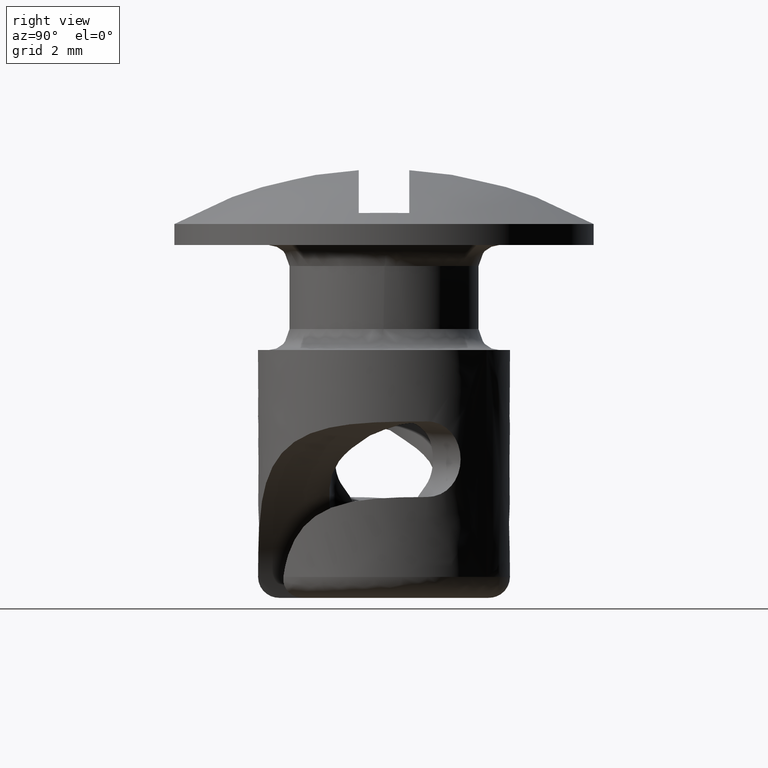
[diagram: clean part render]
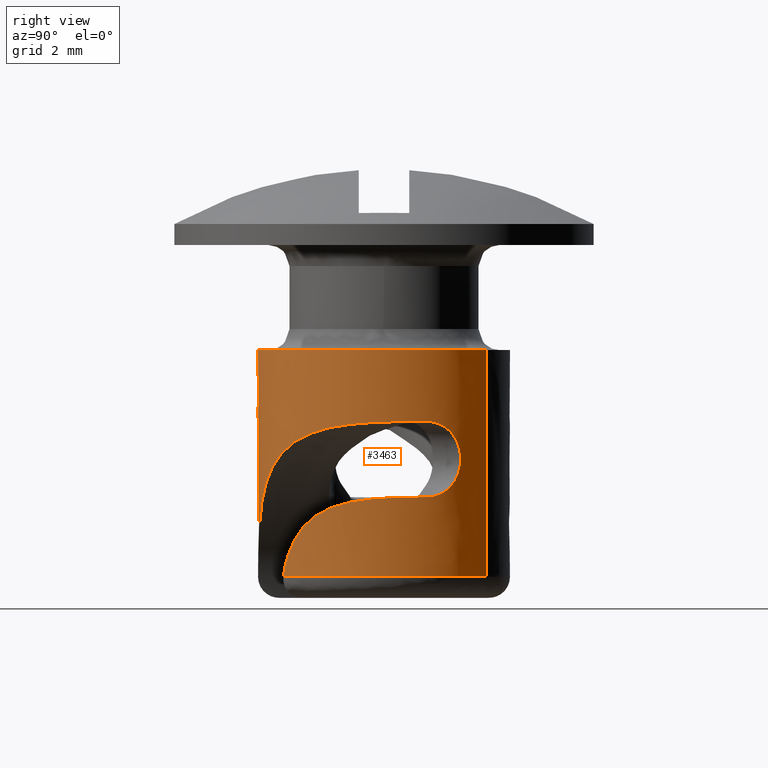
[diagram: same view with one face highlighted and labeled with its STEP entity id]
A machine part, right view. The second image highlights one B-rep face of the part: STEP entity #3463.
In plain terms, the highlighted face is a freeform B-spline surface patch.
Its self-contained STEP definition (entity closure, byte-faithful):
#1556=CARTESIAN_POINT('',(2.819077636768695,1.026061049781646,-6.0));
#1557=VERTEX_POINT('',#1556);
#2558=CARTESIAN_POINT('',(2.822162057853670,1.014812978952756,-4.200050929031289));
#2559=VERTEX_POINT('',#2558);
#2560=CARTESIAN_POINT('',(2.819077636768695,1.026061049781646,-6.0));
#2561=CARTESIAN_POINT('',(2.797463979171089,1.085464739461162,-6.000018086085476));
#2562=CARTESIAN_POINT('',(2.762605582109672,1.171679033032397,-5.990218091084494));
#2563=CARTESIAN_POINT('',(2.707279124423338,1.292800375605229,-5.954939885415632));
#2564=CARTESIAN_POINT('',(2.660950724522531,1.385715166991145,-5.913304676848258));
#2565=CARTESIAN_POINT('',(2.602183946454262,1.494033698544104,-5.843640163453288));
#2566=CARTESIAN_POINT('',(2.560195558849428,1.564437214475005,-5.778661587202548));
#2567=CARTESIAN_POINT('',(2.514876928577023,1.636150739021310,-5.695224062975206));
#2568=CARTESIAN_POINT('',(2.467354746193287,1.708269682873439,-5.592332834705904));
#2569=CARTESIAN_POINT('',(2.420011154006321,1.774448406189930,-5.440404758122634));
#2570=CARTESIAN_POINT('',(2.394169119860111,1.808458678951136,-5.297476428460682));
#2571=CARTESIAN_POINT('',(2.383381347915689,1.822150524114922,-5.190923944487786));
#2572=CARTESIAN_POINT('',(2.379180920556149,1.827233942294989,-5.064455100255301));
#2573=CARTESIAN_POINT('',(2.390285460132183,1.813614250129510,-4.915858042566186));
#2574=CARTESIAN_POINT('',(2.417618032197132,1.777447613480236,-4.777516314206652));
#2575=CARTESIAN_POINT('',(2.451925063704237,1.729719477352586,-4.657072484963682));
#2576=CARTESIAN_POINT('',(2.489532932553430,1.674993288976210,-4.557817584779168));
#2577=CARTESIAN_POINT('',(2.524836248180831,1.620521051361027,-4.485939954765863));
#2578=CARTESIAN_POINT('',(2.561941152248608,1.561445978562565,-4.419005154949642));
#2579=CARTESIAN_POINT('',(2.603781708120269,1.491036945080460,-4.354122994614465));
#2580=CARTESIAN_POINT('',(2.671631159883727,1.365369237595789,-4.273406146776569));
#2581=CARTESIAN_POINT('',(2.746700307929473,1.209133106600514,-4.213564865474518));
#2582=CARTESIAN_POINT('',(2.798266779280111,1.081292943283454,-4.199113421110448));
#2583=CARTESIAN_POINT('',(2.822162057853670,1.014812978952756,-4.200050929031289));
#2584=B_SPLINE_CURVE_WITH_KNOTS('',3,(#2560,#2561,#2562,#2563,#2564,#2565,#2566,#2567,#2568,#2569,#2570,#2571,#2572,#2573,#2574,#2575,#2576,#2577,#2578,#2579,#2580,#2581,#2582,#2583),.UNSPECIFIED.,.F.,.U.,(4,1,1,1,1,1,1,1,1,1,1,1,1,1,1,1,1,1,1,1,1,4),(-0.000002335298677,0.189627093131824,0.278864274602803,0.412719868901659,0.524266133919228,0.702740031829511,0.725051186254211,0.881216259161277,1.104308360350723,1.238163860478404,1.327401246052038,1.427793132262773,1.617422745493953,1.773587547364951,1.862824455248480,2.018988875165072,2.130535768823933,2.152846936025079,2.309012000943451,2.442866887333010,2.643650205887643,2.855589061642666),.UNSPECIFIED.);
#2585=EDGE_CURVE('',#1557,#2559,#2584,.T.);
#2864=CARTESIAN_POINT('',(1.803708136351060,-2.397214416538705,-7.900000000000000));
#2865=VERTEX_POINT('',#2864);
#2866=CARTESIAN_POINT('',(2.819077636768695,1.026061049781646,-6.0));
#2867=CARTESIAN_POINT('',(2.886356603573274,0.841213734128820,-6.000000000000035));
#2868=CARTESIAN_POINT('',(2.934522483304092,0.652853246726990,-6.001579407789945));
#2869=CARTESIAN_POINT('',(2.979256139151774,0.365298164546832,-6.008225596421283));
#2870=CARTESIAN_POINT('',(2.989547928123367,0.268605432291502,-6.011196365280374));
#2871=CARTESIAN_POINT('',(2.997904499401629,0.122290783251686,-6.017444517269400));
#2872=CARTESIAN_POINT('',(2.999507915362323,0.073182875880847,-6.019836233912159));
#2873=CARTESIAN_POINT('',(3.000297524352671,-0.024864291798660,-6.025341262339210));
#2874=CARTESIAN_POINT('',(2.999489415344909,-0.073664599775390,-6.028445241819852));
#2875=CARTESIAN_POINT('',(2.989585544716180,-0.316527861716279,-6.046063818390142));
#2876=CARTESIAN_POINT('',(2.963014038963405,-0.507222868454152,-6.066642919591587));
#2877=CARTESIAN_POINT('',(2.907623242576440,-0.740285439081034,-6.108027236372721));
#2878=CARTESIAN_POINT('',(2.895429564977405,-0.786629617891571,-6.117102833234488));
#2879=CARTESIAN_POINT('',(2.868815224672080,-0.878747818306918,-6.137114471866054));
#2880=CARTESIAN_POINT('',(2.854335564874752,-0.924683641008671,-6.148096461775690));
#2881=CARTESIAN_POINT('',(2.808116929828629,-1.059983358285067,-6.183849358916187));
#2882=CARTESIAN_POINT('',(2.773593729029998,-1.147003528669873,-6.211420620454152));
#2883=CARTESIAN_POINT('',(2.698216136934144,-1.314560362586615,-6.275589184373427));
#2884=CARTESIAN_POINT('',(2.657357799096592,-1.395097124678616,-6.312181741426164));
#2885=CARTESIAN_POINT('',(2.592150484734753,-1.510866466441009,-6.375218391100976));
#2886=CARTESIAN_POINT('',(2.569664287447285,-1.548768247009039,-6.397695125064386));
#2887=CARTESIAN_POINT('',(2.524111362143261,-1.621949279300896,-6.445036843312887));
#2888=CARTESIAN_POINT('',(2.501055969677410,-1.657231384180050,-6.469882084717970));
#2889=CARTESIAN_POINT('',(2.431388940697128,-1.759299609428943,-6.548051656738539));
#2890=CARTESIAN_POINT('',(2.384276878307417,-1.822312950115050,-6.605004506428046));
#2891=CARTESIAN_POINT('',(2.313905965003132,-1.909774689661078,-6.698205305915299));
#2892=CARTESIAN_POINT('',(2.290498175043334,-1.937750899314415,-6.730568629494470));
#2893=CARTESIAN_POINT('',(2.243999605713607,-1.991413118172078,-6.797992734738720));
#2894=CARTESIAN_POINT('',(2.220820638779867,-2.017192649402142,-6.833196815526347));
#2895=CARTESIAN_POINT('',(2.107429358921045,-2.139277777208460,-7.014411494846267));
#2896=CARTESIAN_POINT('',(2.025546708879180,-2.214777402700955,-7.174311198092483));
#2897=CARTESIAN_POINT('',(1.940407054768487,-2.288083338220026,-7.392740767064072));
#2898=CARTESIAN_POINT('',(1.924217066557559,-2.301688327642083,-7.437460783887394));
#2899=CARTESIAN_POINT('',(1.894124773597189,-2.326514951355477,-7.527542543069949));
#2900=CARTESIAN_POINT('',(1.880163499401287,-2.337788469375824,-7.573041659788887));
#2901=CARTESIAN_POINT('',(1.841602327251384,-2.368455132860239,-7.710881092269752));
#2902=CARTESIAN_POINT('',(1.820318218523813,-2.384716685775133,-7.804557844307031));
#2903=CARTESIAN_POINT('',(1.803708136351060,-2.397214416538705,-7.900000000000000));
#2904=B_SPLINE_CURVE_WITH_KNOTS('',3,(#2866,#2867,#2868,#2869,#2870,#2871,#2872,#2873,#2874,#2875,#2876,#2877,#2878,#2879,#2880,#2881,#2882,#2883,#2884,#2885,#2886,#2887,#2888,#2889,#2890,#2891,#2892,#2893,#2894,#2895,#2896,#2897,#2898,#2899,#2900,#2901,#2902,#2903),.UNSPECIFIED.,.F.,.U.,(4,2,2,2,2,2,2,2,2,2,2,2,2,2,2,2,2,2,4),(0.0,0.125000000000000,0.187500000000000,0.218750000000000,0.250000000000000,0.375000000000000,0.406250000000000,0.437500000000000,0.500000000000000,0.562500000000000,0.593750000000000,0.625000000000000,0.687499999999999,0.718749999999999,0.749999999999999,0.875000000000000,0.906250000000000,0.937500000000000,1.0),.UNSPECIFIED.);
#2905=EDGE_CURVE('',#1557,#2865,#2904,.T.);
#2980=CARTESIAN_POINT('',(1.743878512532106,2.441083311468252,-7.900000000000000));
#2981=VERTEX_POINT('',#2980);
#2995=CARTESIAN_POINT('',(1.803708136351057,-2.397214416538704,-7.900000000000000));
#2996=CARTESIAN_POINT('',(3.555889252561385,-1.078841177221828,-7.900000000000000));
#2997=CARTESIAN_POINT('',(2.831638270195142,0.990870681151816,-7.900000000000000));
#2998=CARTESIAN_POINT('',(2.517581247775020,1.888360031300523,-7.900000000000000));
#2999=CARTESIAN_POINT('',(1.743878512532107,2.441083311468252,-7.900000000000000));
#3007=(BOUNDED_CURVE()B_SPLINE_CURVE(2,(#2995,#2996,#2997,#2998,#2999),.UNSPECIFIED.,.F.,.U.)B_SPLINE_CURVE_WITH_KNOTS((3,2,3),(0.0,0.500000000000000,0.743372198286855),.UNSPECIFIED.)CURVE()GEOMETRIC_REPRESENTATION_ITEM()RATIONAL_B_SPLINE_CURVE((1.0,0.807331664785344,1.0,0.906219767437081,0.903733540292922))REPRESENTATION_ITEM(''));
#3008=EDGE_CURVE('',#2865,#2981,#3007,.T.);
#3092=CARTESIAN_POINT('',(3.0,0.0,-2.500000000000060));
#3093=VERTEX_POINT('',#3092);
#3094=CARTESIAN_POINT('',(1.743877725871815,2.441083873447854,-2.500000000000060));
#3095=VERTEX_POINT('',#3094);
#3096=CARTESIAN_POINT('',(3.0,0.0,-2.500000000000060));
#3097=CARTESIAN_POINT('',(2.999999999999953,1.543726892538668,-2.500000000000060));
#3098=CARTESIAN_POINT('',(1.743877725871815,2.441083873447854,-2.500000000000060));
#3106=(BOUNDED_CURVE()B_SPLINE_CURVE(2,(#3096,#3097,#3098),.UNSPECIFIED.,.F.,.U.)B_SPLINE_CURVE_WITH_KNOTS((3,3),(0.0,0.149965649778533),.UNSPECIFIED.)CURVE()GEOMETRIC_REPRESENTATION_ITEM()RATIONAL_B_SPLINE_CURVE((1.0,0.824304312499658,0.859395168513515))REPRESENTATION_ITEM(''));
#3107=EDGE_CURVE('',#3093,#3095,#3106,.T.);
#3126=CARTESIAN_POINT('',(-1.743877725871815,-2.441083873447854,-2.500000000000060));
#3127=VERTEX_POINT('',#3126);
#3141=CARTESIAN_POINT('',(-1.743877725871815,-2.441083873447854,-2.500000000000059));
#3142=CARTESIAN_POINT('',(-0.961505703513444,-2.999999999999880,-2.500000000000060));
#3143=CARTESIAN_POINT('',(7.163261E-014,-2.999999999999901,-2.500000000000060));
#3144=CARTESIAN_POINT('',(3.000000000000025,-2.999999999999966,-2.500000000000060));
#3145=CARTESIAN_POINT('',(3.0,0.0,-2.500000000000060));
#3153=(BOUNDED_CURVE()B_SPLINE_CURVE(2,(#3141,#3142,#3143,#3144,#3145),.UNSPECIFIED.,.F.,.U.)B_SPLINE_CURVE_WITH_KNOTS((3,2,3),(0.649965649778533,0.750000000000000,1.0),.UNSPECIFIED.)CURVE()GEOMETRIC_REPRESENTATION_ITEM()RATIONAL_B_SPLINE_CURVE((0.859395168513515,0.882802468686890,1.0,0.707106781186548,1.0))REPRESENTATION_ITEM(''));
#3154=EDGE_CURVE('',#3127,#3093,#3153,.T.);
#3362=CARTESIAN_POINT('',(-1.743878526417173,-2.441083301548938,-8.035000000000000));
#3363=CARTESIAN_POINT('',(0.697204775131765,-4.184961827966111,-8.035000000000000));
#3364=CARTESIAN_POINT('',(2.441083301548938,-1.743878526417173,-8.035000000000000));
#3365=CARTESIAN_POINT('',(4.184961827966111,0.697204775131765,-8.035000000000000));
#3366=CARTESIAN_POINT('',(1.743878526417173,2.441083301548938,-8.035000000000000));
#3367=CARTESIAN_POINT('',(-1.743878526417173,-2.441083301548938,-2.361625000000061));
#3368=CARTESIAN_POINT('',(0.697204775131765,-4.184961827966111,-2.361625000000062));
#3369=CARTESIAN_POINT('',(2.441083301548938,-1.743878526417173,-2.361625000000061));
#3370=CARTESIAN_POINT('',(4.184961827966111,0.697204775131765,-2.361625000000062));
#3371=CARTESIAN_POINT('',(1.743878526417173,2.441083301548938,-2.361625000000061));
#3379=(BOUNDED_SURFACE()B_SPLINE_SURFACE(2,1,((#3362,#3367),(#3363,#3368),(#3364,#3369),(#3365,#3370),(#3366,#3371)),.UNSPECIFIED.,.F.,.F.,.U.)B_SPLINE_SURFACE_WITH_KNOTS((3,2,3),(2,2),(0.0,4.970562748477139,9.941125496954278),(0.0,5.673374999999939),.UNSPECIFIED.)GEOMETRIC_REPRESENTATION_ITEM()RATIONAL_B_SPLINE_SURFACE(((1.0,1.0),(0.707106781186548,0.707106781186548),(1.0,1.0),(0.707106781186548,0.707106781186548),(1.0,1.0)))REPRESENTATION_ITEM('')SURFACE());
#3380=ORIENTED_EDGE('',*,*,#3154,.F.);
#3381=CARTESIAN_POINT('',(-1.743878512532106,-2.441083311468252,-7.900000000000000));
#3382=VERTEX_POINT('',#3381);
#3383=CARTESIAN_POINT('',(-1.743878512532106,-2.441083311468252,-7.900000000000000));
#3384=CARTESIAN_POINT('',(-1.743877725871815,-2.441083873447854,-2.500000000000060));
#3385=QUASI_UNIFORM_CURVE('',1,(#3383,#3384),.UNSPECIFIED.,.F.,.U.);
#3386=EDGE_CURVE('',#3382,#3127,#3385,.T.);
#3387=ORIENTED_EDGE('',*,*,#3386,.F.);
#3388=CARTESIAN_POINT('',(0.084513880760829,-2.998809331044365,-7.900000000000000));
#3389=VERTEX_POINT('',#3388);
#3390=CARTESIAN_POINT('',(-1.743878512532107,-2.441083311468253,-7.900000000000000));
#3391=CARTESIAN_POINT('',(-0.923410453437955,-3.027215137347076,-7.900000000000002));
#3392=CARTESIAN_POINT('',(0.084513880760829,-2.998809331044364,-7.900000000000000));
#3400=(BOUNDED_CURVE()B_SPLINE_CURVE(2,(#3390,#3391,#3392),.UNSPECIFIED.,.F.,.U.)B_SPLINE_CURVE_WITH_KNOTS((3,3),(0.743372198286852,1.0),.UNSPECIFIED.)CURVE()GEOMETRIC_REPRESENTATION_ITEM()RATIONAL_B_SPLINE_CURVE((0.903733540292922,0.901111897348261,1.0))REPRESENTATION_ITEM(''));
#3401=EDGE_CURVE('',#3382,#3389,#3400,.T.);
#3402=ORIENTED_EDGE('',*,*,#3401,.T.);
#3403=CARTESIAN_POINT('',(2.822162057853670,1.014812978952756,-4.200050929031289));
#3404=CARTESIAN_POINT('',(2.875856112348950,0.865265143105106,-4.200088019722151));
#3405=CARTESIAN_POINT('',(2.917051673132925,0.713422657908753,-4.200743004186820));
#3406=CARTESIAN_POINT('',(2.975427922177581,0.405337075508539,-4.203923010432561));
#3407=CARTESIAN_POINT('',(2.992607327427301,0.249093669237103,-4.206442102980740));
#3408=CARTESIAN_POINT('',(2.999735394838575,0.011330851012772,-4.213153793433969));
#3409=CARTESIAN_POINT('',(2.998952030607199,-0.068104431954510,-4.215886928658714));
#3410=CARTESIAN_POINT('',(2.991220736471441,-0.225354151889920,-4.222607419216273));
#3411=CARTESIAN_POINT('',(2.984284100200342,-0.303462786045208,-4.226602378149681));
#3412=CARTESIAN_POINT('',(2.954438573701042,-0.536224758827918,-4.241066453046151));
#3413=CARTESIAN_POINT('',(2.922542730368529,-0.689325257416795,-4.253965218412184));
#3414=CARTESIAN_POINT('',(2.856500234604475,-0.915609311439942,-4.281249180966838));
#3415=CARTESIAN_POINT('',(2.831336787663176,-0.990661878627699,-4.291725415248441));
#3416=CARTESIAN_POINT('',(2.775971816221468,-1.136634830036026,-4.315485230953937));
#3417=CARTESIAN_POINT('',(2.745684318731311,-1.207911716532344,-4.328803191879577));
#3418=CARTESIAN_POINT('',(2.647423547637962,-1.416659631466647,-4.373744406340993));
#3419=CARTESIAN_POINT('',(2.572075229241385,-1.549068379827452,-4.410321451825213));
#3420=CARTESIAN_POINT('',(2.445414293709213,-1.737328702749403,-4.478283855320402));
#3421=CARTESIAN_POINT('',(2.400667471893287,-1.798638102972812,-4.503279799933480));
#3422=CARTESIAN_POINT('',(2.308540487014056,-1.915517673954951,-4.557217441519781));
#3423=CARTESIAN_POINT('',(2.261073674818122,-1.971271897221150,-4.586194035547374));
#3424=CARTESIAN_POINT('',(2.115117811566052,-2.130885219885554,-4.679498272049674));
#3425=CARTESIAN_POINT('',(2.013082954082004,-2.227112832818905,-4.750187442461593));
#3426=CARTESIAN_POINT('',(1.855219237500798,-2.357375734254866,-4.870524845552550));
#3427=CARTESIAN_POINT('',(1.801699198745441,-2.398486494782149,-4.913121159862711));
#3428=CARTESIAN_POINT('',(1.695335344232011,-2.474878795000314,-5.001715864459546));
#3429=CARTESIAN_POINT('',(1.642259457086042,-2.510364055008634,-5.047882426415881));
#3430=CARTESIAN_POINT('',(1.483839979005593,-2.609461869698324,-5.192010701315551));
#3431=CARTESIAN_POINT('',(1.379306149480922,-2.665738946326431,-5.295588119762163));
#3432=CARTESIAN_POINT('',(1.225935935453394,-2.737994835438502,-5.462490916647739));
#3433=CARTESIAN_POINT('',(1.175594715019955,-2.759938992371755,-5.519838683677067));
#3434=CARTESIAN_POINT('',(1.077653980130494,-2.799686161330320,-5.636769181444359));
#3435=CARTESIAN_POINT('',(1.029898718035494,-2.817562767270844,-5.696519209970029));
#3436=CARTESIAN_POINT('',(0.890473701845424,-2.866022598199305,-5.879579496300569));
#3437=CARTESIAN_POINT('',(0.802634560492782,-2.891459750296530,-6.006687629530007));
#3438=CARTESIAN_POINT('',(0.679462369883381,-2.922000541619343,-6.205002151480914));
#3439=CARTESIAN_POINT('',(0.639838314599892,-2.930904808041741,-6.272385451664836));
#3440=CARTESIAN_POINT('',(0.563644669099009,-2.946544733937598,-6.409755569905051));
#3441=CARTESIAN_POINT('',(0.526993053949593,-2.953291497065962,-6.479926199666795));
#3442=CARTESIAN_POINT('',(0.423006566266235,-2.970645426171732,-6.692189593258194));
#3443=CARTESIAN_POINT('',(0.361317228347891,-2.978471273026523,-6.836495702580184));
#3444=CARTESIAN_POINT('',(0.253764331408831,-2.989614429484180,-7.130780027083017));
#3445=CARTESIAN_POINT('',(0.207900411353682,-2.992926809627926,-7.280758307729466));
#3446=CARTESIAN_POINT('',(0.133048135966176,-2.997237335207018,-7.586666678292163));
#3447=CARTESIAN_POINT('',(0.104054341967482,-2.998236659839906,-7.743180701552070));
#3448=CARTESIAN_POINT('',(0.084513880760829,-2.998809331044365,-7.900000000000000));
#3449=B_SPLINE_CURVE_WITH_KNOTS('',3,(#3403,#3404,#3405,#3406,#3407,#3408,#3409,#3410,#3411,#3412,#3413,#3414,#3415,#3416,#3417,#3418,#3419,#3420,#3421,#3422,#3423,#3424,#3425,#3426,#3427,#3428,#3429,#3430,#3431,#3432,#3433,#3434,#3435,#3436,#3437,#3438,#3439,#3440,#3441,#3442,#3443,#3444,#3445,#3446,#3447,#3448),.UNSPECIFIED.,.F.,.U.,(4,2,2,2,2,2,2,2,2,2,2,2,2,2,2,2,2,2,2,2,2,2,4),(0.0,0.062500000000000,0.124999999999999,0.156249999999999,0.187499999999999,0.249999999999999,0.281249999999998,0.312499999999998,0.374999999999998,0.406249999999997,0.437499999999997,0.499999999999997,0.531249999999997,0.562499999999997,0.624999999999997,0.656249999999997,0.687499999999997,0.749999999999998,0.781249999999998,0.812499999999998,0.874999999999999,0.937499999999999,1.0),.UNSPECIFIED.);
#3450=EDGE_CURVE('',#2559,#3389,#3449,.T.);
#3451=ORIENTED_EDGE('',*,*,#3450,.F.);
#3452=ORIENTED_EDGE('',*,*,#2585,.F.);
#3453=ORIENTED_EDGE('',*,*,#2905,.T.);
#3454=ORIENTED_EDGE('',*,*,#3008,.T.);
#3455=CARTESIAN_POINT('',(1.743878512532106,2.441083311468252,-7.900000000000000));
#3456=CARTESIAN_POINT('',(1.743877725871815,2.441083873447854,-2.500000000000060));
#3457=QUASI_UNIFORM_CURVE('',1,(#3455,#3456),.UNSPECIFIED.,.F.,.U.);
#3458=EDGE_CURVE('',#2981,#3095,#3457,.T.);
#3459=ORIENTED_EDGE('',*,*,#3458,.T.);
#3460=ORIENTED_EDGE('',*,*,#3107,.F.);
#3461=EDGE_LOOP('',(#3380,#3387,#3402,#3451,#3452,#3453,#3454,#3459,#3460));
#3462=FACE_OUTER_BOUND('',#3461,.T.);
#3463=ADVANCED_FACE('',(#3462),#3379,.T.);